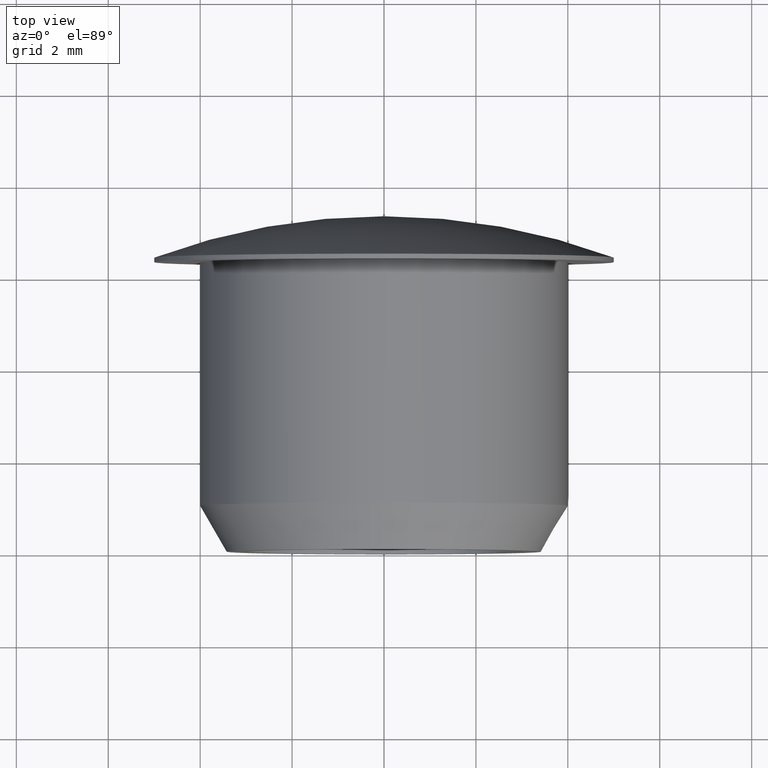
[diagram: clean part render]
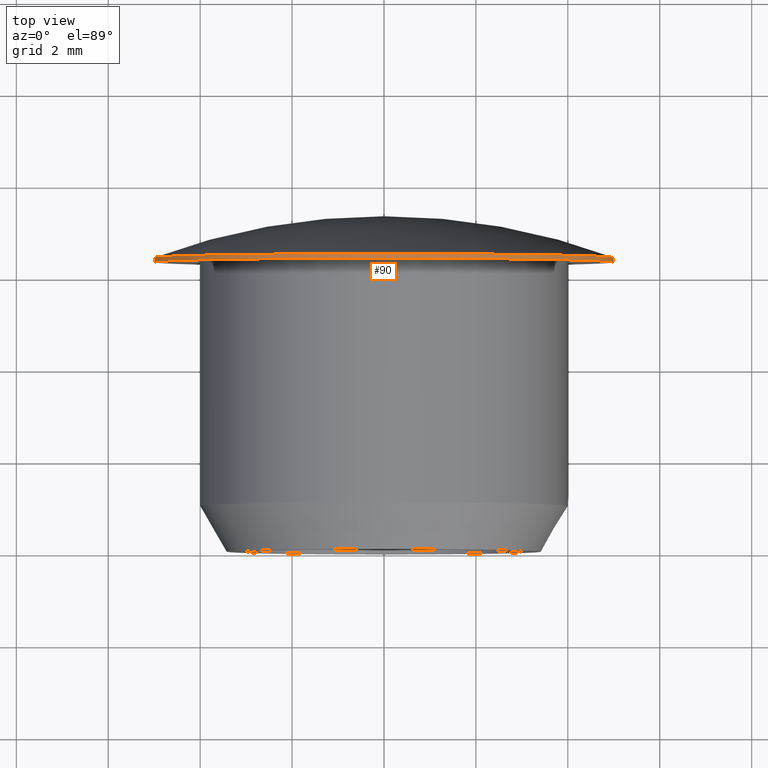
[diagram: same view with one face highlighted and labeled with its STEP entity id]
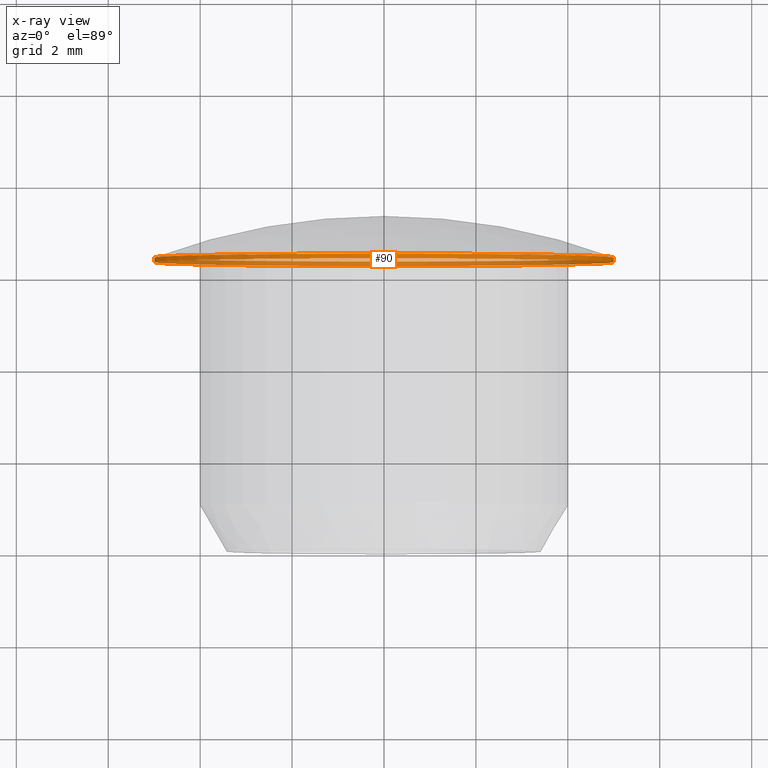
[diagram: x-ray of the same camera — body ghosted, the highlighted face saturated]
A machine part, top view. The second image highlights one B-rep face of the part: STEP entity #90.
The next image is the same camera in x-ray: the body ghosted, the highlighted face saturated — about 46% of this face is hidden behind the body in this view.
In plain terms, the highlighted cylindrical surface (bore or boss wall) has radius 5 mm, axis along (0, 1, 0).
Its self-contained STEP definition (entity closure, byte-faithful):
#17=CYLINDRICAL_SURFACE('',#105,5.);
#26=FACE_BOUND('',#45,.T.);
#32=FACE_OUTER_BOUND('',#44,.T.);
#44=EDGE_LOOP('',(#79));
#45=EDGE_LOOP('',(#80));
#54=CIRCLE('',#104,5.);
#55=CIRCLE('',#106,5.);
#61=VERTEX_POINT('',#156);
#62=VERTEX_POINT('',#159);
#68=EDGE_CURVE('',#61,#61,#54,.T.);
#69=EDGE_CURVE('',#62,#62,#55,.T.);
#79=ORIENTED_EDGE('',*,*,#69,.F.);
#80=ORIENTED_EDGE('',*,*,#68,.T.);
#90=ADVANCED_FACE('',(#32,#26),#17,.T.);
#104=AXIS2_PLACEMENT_3D('',#157,#129,#130);
#105=AXIS2_PLACEMENT_3D('',#158,#131,#132);
#106=AXIS2_PLACEMENT_3D('',#160,#133,#134);
#129=DIRECTION('center_axis',(0.,1.,0.));
#130=DIRECTION('ref_axis',(1.,0.,0.));
#131=DIRECTION('center_axis',(0.,1.,0.));
#132=DIRECTION('ref_axis',(-1.,0.,0.));
#133=DIRECTION('center_axis',(0.,1.,0.));
#134=DIRECTION('ref_axis',(1.,0.,0.));
#156=CARTESIAN_POINT('',(-5.,6.3,0.));
#157=CARTESIAN_POINT('Origin',(0.,6.3,0.));
#158=CARTESIAN_POINT('Origin',(0.,6.35,0.));
#159=CARTESIAN_POINT('',(-5.,6.4,0.));
#160=CARTESIAN_POINT('Origin',(0.,6.4,0.));